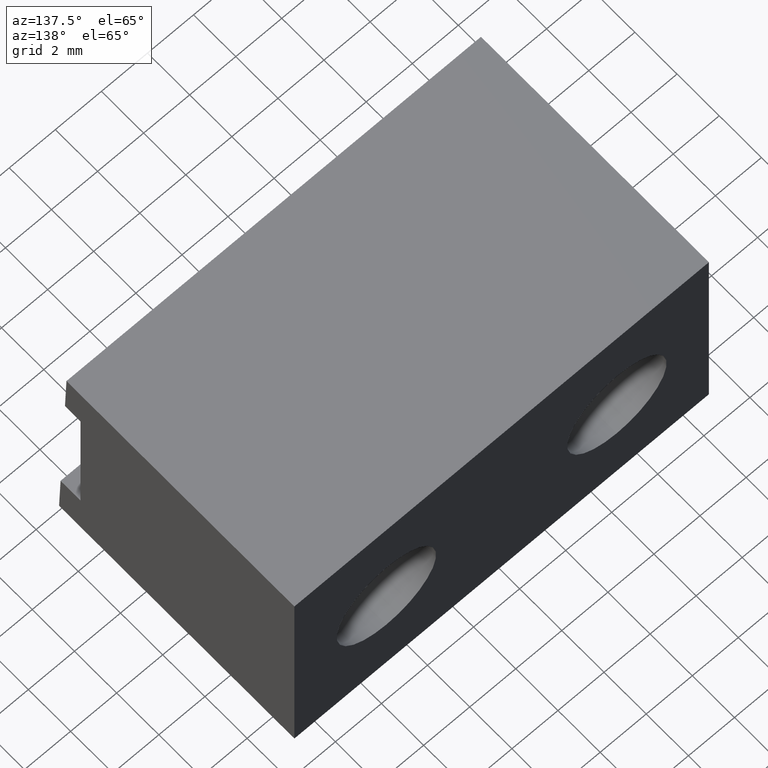
[diagram: clean part render]
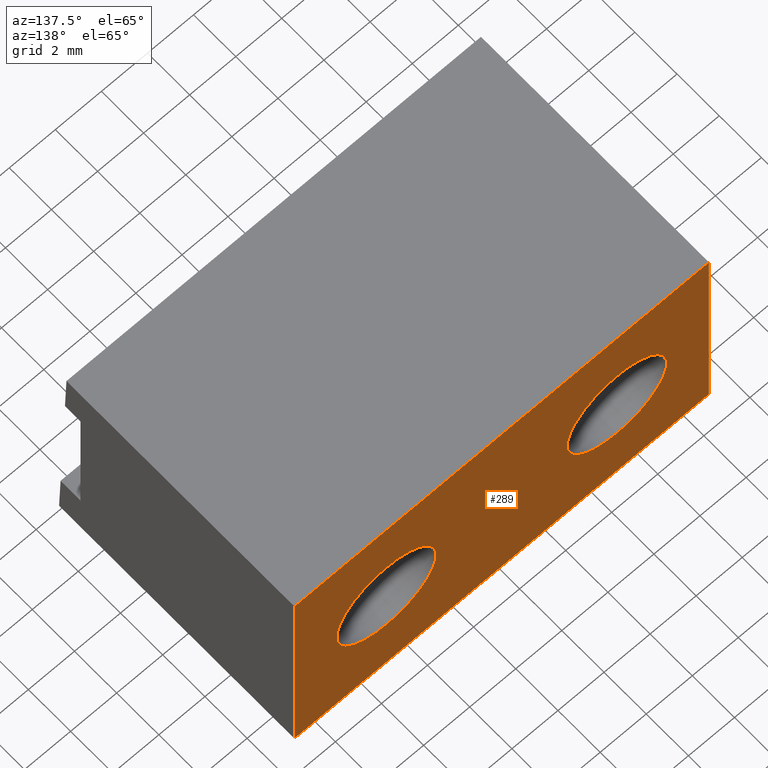
[diagram: same view with one face highlighted and labeled with its STEP entity id]
A machine part, auxiliary view. The second image highlights one B-rep face of the part: STEP entity #289.
In plain terms, the highlighted planar face has unit normal (0, 1, 0).
Its self-contained STEP definition (entity closure, byte-faithful):
#7 = ORIENTED_EDGE ( 'NONE', *, *, #171, .T. ) ;
#9 = VECTOR ( 'NONE', #320, 39.37007874015748100 ) ;
#15 = ORIENTED_EDGE ( 'NONE', *, *, #340, .F. ) ;
#22 = ORIENTED_EDGE ( 'NONE', *, *, #346, .F. ) ;
#36 = ORIENTED_EDGE ( 'NONE', *, *, #189, .F. ) ;
#44 = VECTOR ( 'NONE', #364, 39.37007874015748100 ) ;
#52 = EDGE_LOOP ( 'NONE', ( #70, #22 ) ) ;
#55 = LINE ( 'NONE', #365, #44 ) ;
#58 = CIRCLE ( 'NONE', #136, 0.08499999999999999200 ) ;
#70 = ORIENTED_EDGE ( 'NONE', *, *, #154, .F. ) ;
#73 = LINE ( 'NONE', #358, #77 ) ;
#77 = VECTOR ( 'NONE', #354, 39.37007874015748100 ) ;
#91 = ORIENTED_EDGE ( 'NONE', *, *, #135, .T. ) ;
#92 = ORIENTED_EDGE ( 'NONE', *, *, #193, .F. ) ;
#93 = LINE ( 'NONE', #339, #9 ) ;
#100 = EDGE_LOOP ( 'NONE', ( #36, #92 ) ) ;
#103 = ORIENTED_EDGE ( 'NONE', *, *, #160, .F. ) ;
#120 = EDGE_LOOP ( 'NONE', ( #15, #103, #7, #91 ) ) ;
#135 = EDGE_CURVE ( 'NONE', #304, #315, #93, .T. ) ;
#136 = AXIS2_PLACEMENT_3D ( 'NONE', #518, #361, #362 ) ;
#147 = AXIS2_PLACEMENT_3D ( 'NONE', #500, #514, #377 ) ;
#151 = AXIS2_PLACEMENT_3D ( 'NONE', #395, #398, #397 ) ;
#154 = EDGE_CURVE ( 'NONE', #319, #332, #58, .T. ) ;
#160 = EDGE_CURVE ( 'NONE', #313, #307, #55, .T. ) ;
#171 = EDGE_CURVE ( 'NONE', #313, #304, #73, .T. ) ;
#175 = AXIS2_PLACEMENT_3D ( 'NONE', #392, #386, #391 ) ;
#189 = EDGE_CURVE ( 'NONE', #337, #305, #241, .T. ) ;
#193 = EDGE_CURVE ( 'NONE', #305, #337, #286, .T. ) ;
#198 = AXIS2_PLACEMENT_3D ( 'NONE', #420, #423, #419 ) ;
#206 = LINE ( 'NONE', #413, #257 ) ;
#226 = CIRCLE ( 'NONE', #175, 0.08499999999999999200 ) ;
#227 = FACE_BOUND ( 'NONE', #100, .T. ) ;
#241 = CIRCLE ( 'NONE', #147, 0.08499999999999997800 ) ;
#257 = VECTOR ( 'NONE', #411, 39.37007874015748100 ) ;
#284 = FACE_OUTER_BOUND ( 'NONE', #120, .T. ) ;
#286 = CIRCLE ( 'NONE', #151, 0.08499999999999997800 ) ;
#287 = FACE_BOUND ( 'NONE', #52, .T. ) ;
#289 = ADVANCED_FACE ( 'NONE', ( #287, #227, #284 ), #414, .T. ) ;
#304 = VERTEX_POINT ( 'NONE', #462 ) ;
#305 = VERTEX_POINT ( 'NONE', #476 ) ;
#307 = VERTEX_POINT ( 'NONE', #469 ) ;
#313 = VERTEX_POINT ( 'NONE', #465 ) ;
#315 = VERTEX_POINT ( 'NONE', #428 ) ;
#319 = VERTEX_POINT ( 'NONE', #427 ) ;
#320 = DIRECTION ( 'NONE',  ( 0.0000000000000000000, 0.0000000000000000000, 1.000000000000000000 ) ) ;
#332 = VERTEX_POINT ( 'NONE', #421 ) ;
#337 = VERTEX_POINT ( 'NONE', #415 ) ;
#339 = CARTESIAN_POINT ( 'NONE',  ( -0.3543307086614173600, 0.4390000000000000000, -0.3937007900000000200 ) ) ;
#340 = EDGE_CURVE ( 'NONE', #307, #315, #206, .T. ) ;
#346 = EDGE_CURVE ( 'NONE', #332, #319, #226, .T. ) ;
#354 = DIRECTION ( 'NONE',  ( -1.000000000000000000, -0.0000000000000000000, -0.0000000000000000000 ) ) ;
#358 = CARTESIAN_POINT ( 'NONE',  ( -0.3543307086614173600, 0.4390000000000000000, -0.3937007900000000200 ) ) ;
#361 = DIRECTION ( 'NONE',  ( 0.0000000000000000000, 1.000000000000000000, 0.0000000000000000000 ) ) ;
#362 = DIRECTION ( 'NONE',  ( 0.0000000000000000000, 0.0000000000000000000, 1.000000000000000000 ) ) ;
#364 = DIRECTION ( 'NONE',  ( 0.0000000000000000000, 0.0000000000000000000, 1.000000000000000000 ) ) ;
#365 = CARTESIAN_POINT ( 'NONE',  ( 0.3543307086614172500, 0.4390000000000000000, -0.3937007900000000200 ) ) ;
#377 = DIRECTION ( 'NONE',  ( 0.0000000000000000000, 0.0000000000000000000, -1.000000000000000000 ) ) ;
#386 = DIRECTION ( 'NONE',  ( 0.0000000000000000000, 1.000000000000000000, 0.0000000000000000000 ) ) ;
#391 = DIRECTION ( 'NONE',  ( 0.0000000000000000000, 0.0000000000000000000, 1.000000000000000000 ) ) ;
#392 = CARTESIAN_POINT ( 'NONE',  ( 0.1969999999999999800, 0.4390000000000000000, -0.1968503950000000100 ) ) ;
#395 = CARTESIAN_POINT ( 'NONE',  ( -0.1970000000000000400, 0.4390000000000000000, -0.1968503949999999800 ) ) ;
#397 = DIRECTION ( 'NONE',  ( 0.0000000000000000000, 0.0000000000000000000, -1.000000000000000000 ) ) ;
#398 = DIRECTION ( 'NONE',  ( -0.0000000000000000000, 1.000000000000000000, 0.0000000000000000000 ) ) ;
#411 = DIRECTION ( 'NONE',  ( -1.000000000000000000, -0.0000000000000000000, -0.0000000000000000000 ) ) ;
#413 = CARTESIAN_POINT ( 'NONE',  ( -0.3543307086614173600, 0.4390000000000000000, 0.0000000000000000000 ) ) ;
#414 = PLANE ( 'NONE',  #198 ) ;
#415 = CARTESIAN_POINT ( 'NONE',  ( -0.1970000000000000400, 0.4390000000000000000, -0.1118503950000000100 ) ) ;
#419 = DIRECTION ( 'NONE',  ( 0.0000000000000000000, -0.0000000000000000000, 1.000000000000000000 ) ) ;
#420 = CARTESIAN_POINT ( 'NONE',  ( -0.3543307086614173600, 0.4390000000000000000, -0.3937007900000000200 ) ) ;
#421 = CARTESIAN_POINT ( 'NONE',  ( 0.1969999999999999800, 0.4390000000000000000, -0.2818503950000000300 ) ) ;
#423 = DIRECTION ( 'NONE',  ( 0.0000000000000000000, 1.000000000000000000, 0.0000000000000000000 ) ) ;
#427 = CARTESIAN_POINT ( 'NONE',  ( 0.1969999999999999800, 0.4390000000000000000, -0.1118503950000000200 ) ) ;
#428 = CARTESIAN_POINT ( 'NONE',  ( -0.3543307086614173600, 0.4390000000000000000, 0.0000000000000000000 ) ) ;
#462 = CARTESIAN_POINT ( 'NONE',  ( -0.3543307086614173600, 0.4390000000000000000, -0.3937007900000000200 ) ) ;
#465 = CARTESIAN_POINT ( 'NONE',  ( 0.3543307086614172500, 0.4390000000000000000, -0.3937007900000000200 ) ) ;
#469 = CARTESIAN_POINT ( 'NONE',  ( 0.3543307086614172500, 0.4390000000000000000, 0.0000000000000000000 ) ) ;
#476 = CARTESIAN_POINT ( 'NONE',  ( -0.1970000000000000400, 0.4390000000000000000, -0.2818503949999999800 ) ) ;
#500 = CARTESIAN_POINT ( 'NONE',  ( -0.1970000000000000400, 0.4390000000000000000, -0.1968503949999999800 ) ) ;
#514 = DIRECTION ( 'NONE',  ( -0.0000000000000000000, 1.000000000000000000, 0.0000000000000000000 ) ) ;
#518 = CARTESIAN_POINT ( 'NONE',  ( 0.1969999999999999800, 0.4390000000000000000, -0.1968503950000000100 ) ) ;